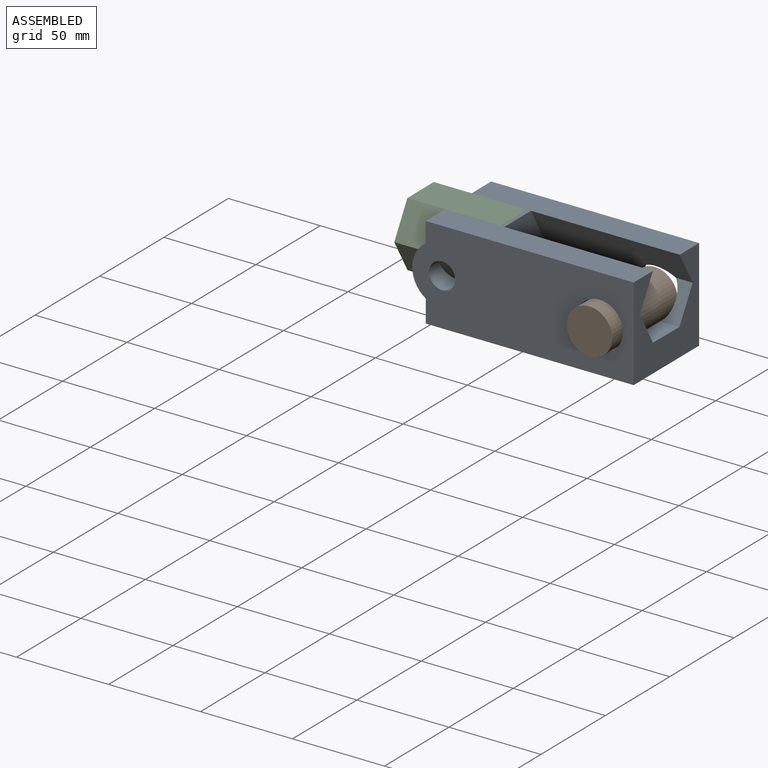
[diagram: assembled view]
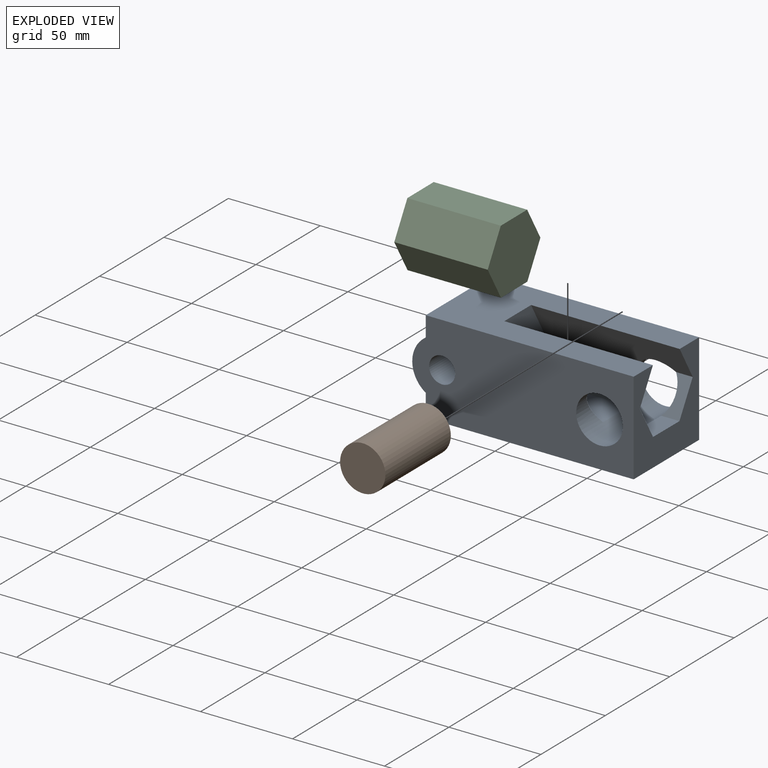
[diagram: exploded view]
GUIDED TOUR — MATED ASSEMBLY (Onshape document 167a81f168140e0e0e0a7507, AutoMate assembly 167a81f168140e0e0e0a7507_53d5cce58619a4c7962829b4_d030ca5ffd30fc23855b2f6c_default)

This assembly has 3 components, labeled P0..P2 below (a component is one placed occurrence of a part; the same part can appear more than once), held together by 2 mates. A mate is a constraint between two components; its type names the relative motion it leaves free:
  SLIDER — leaves translation along the listed axis free.
Axis/direction vectors are unit vectors and 'through' points are millimeter coordinates, both in the assembly's world frame.

MATES
  1. SLIDER "Slider 1": P1 <-> P0, axis (0.000, 1.000, 0.000) through (51.93, 49.98, 87.12) mm
  2. SLIDER "Slider 2": P2 <-> P0, axis (-1.000, 0.000, 0.000) through (-63.05, 32.32, 95.50) mm

ASSEMBLY ORDER
  1. P2 — the base component [order verified]
  2. P0 [order verified]
  3. P1 [order verified]
Order-tag legend:
  [order verified] — this step's position reverses a verified removal order: the component was checked to insert without passing through the ones already placed.

Of the 3 components, 1 carries the full construction recipe — the FeatureScript program that regenerates the part's solid from scratch; the rest are supplied as boundary geometry only.
Each toured component is shown spotlighted twice — in the assembled view, then in the exploded view, where a leader line traces a displaced component back to its assembled socket (saturated green if recipe-attached, orange if geometry-only; every other component desaturated gray) — followed by its recipe or geometry summary and the mates that hold it.
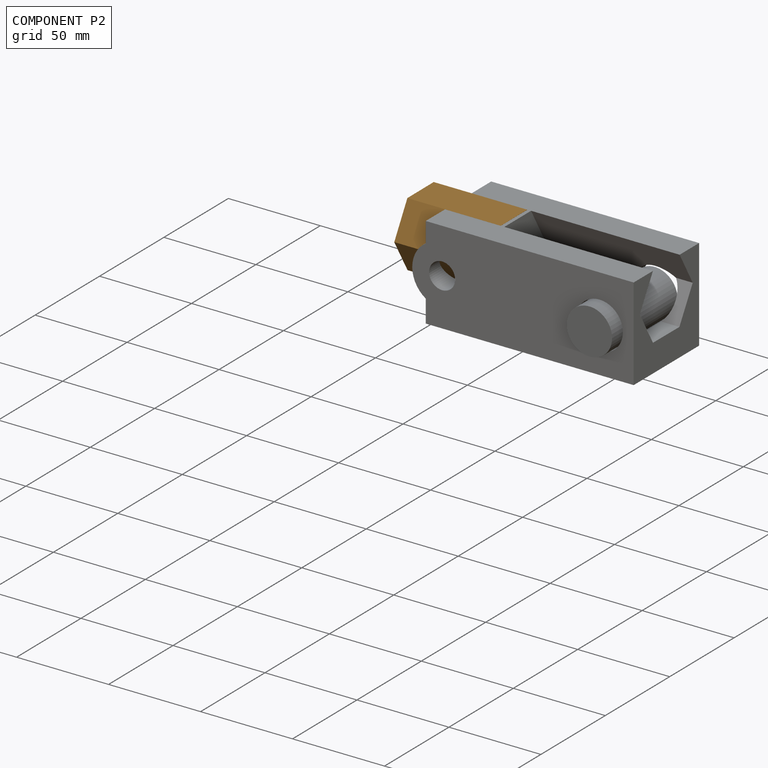
[diagram: component P2 — assembled]
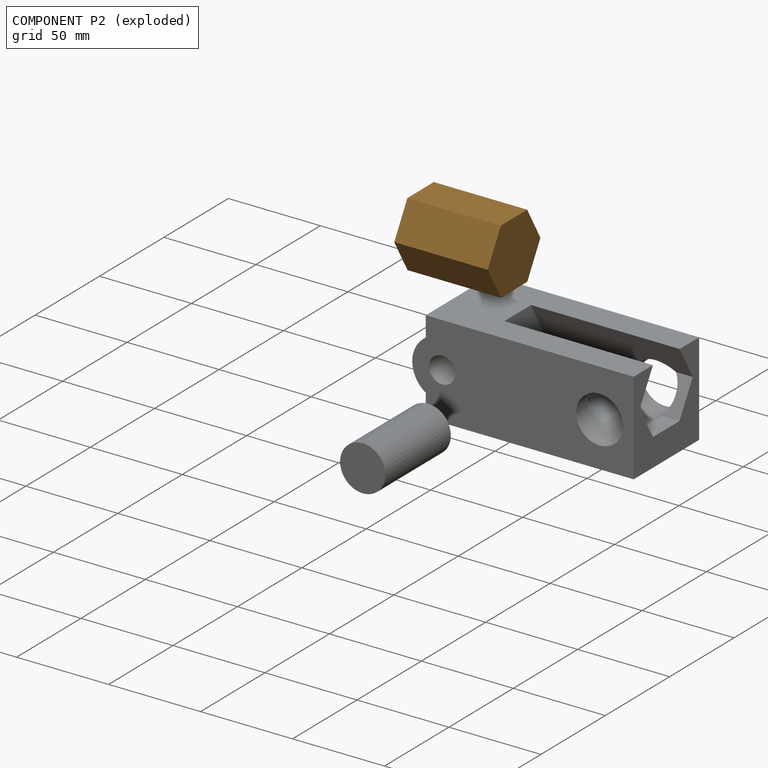
[diagram: component P2 — exploded]
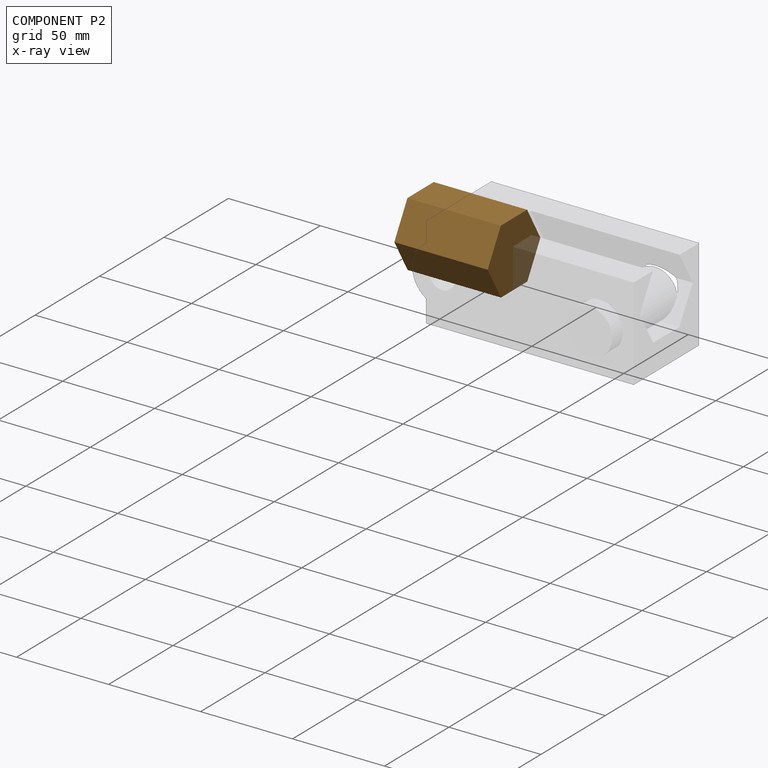
[diagram: component P2 — x-ray view]
COMPONENT P2 — geometry summary (no construction recipe available for this part):
  bounding box: 50.8 x 40.9 x 35.5 mm
  B-rep topology: 1 solid, 8 faces, 36 edges
  volume: 55234 mm^3 (75% of its bounding box)
  symmetry: 2-fold rotationally symmetric about the x axis; 2-fold rotationally symmetric about the y axis; 6-fold rotationally symmetric about the z axis; mirror-symmetric across its x mid-plane, y mid-plane, z mid-plane
Held by: SLIDER mate "Slider 2" to P0.
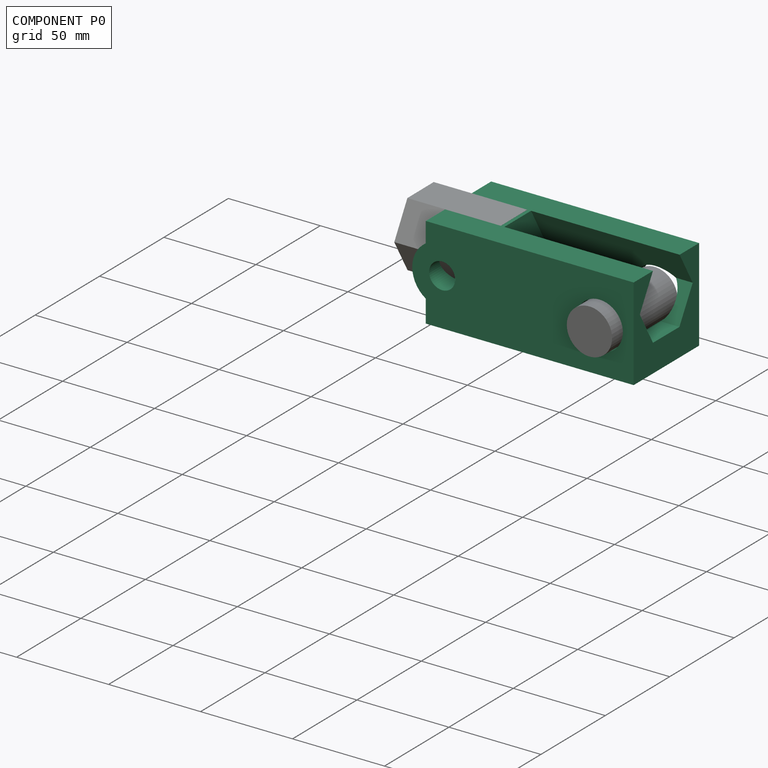
[diagram: component P0 — assembled]
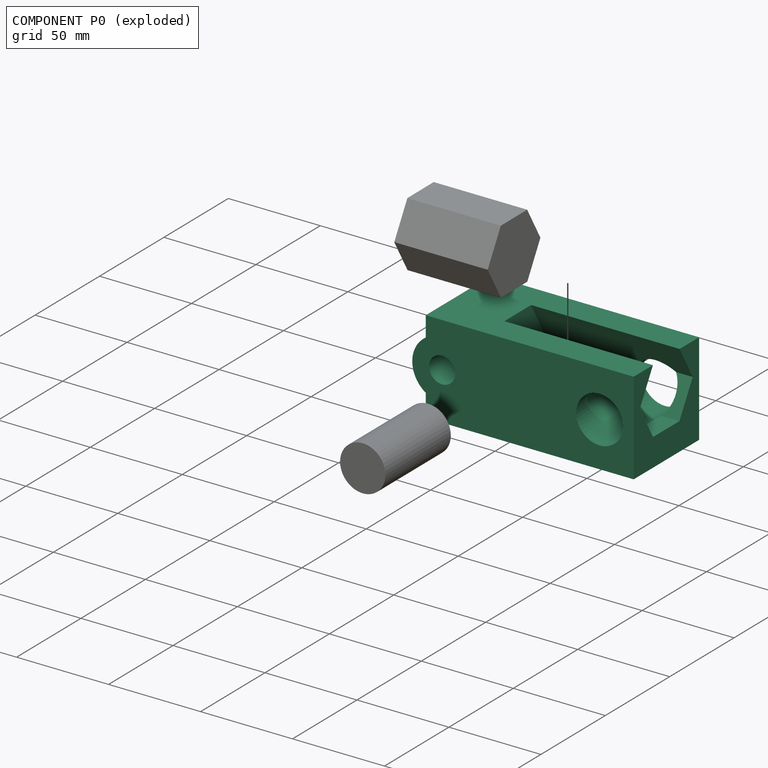
[diagram: component P0 — exploded]
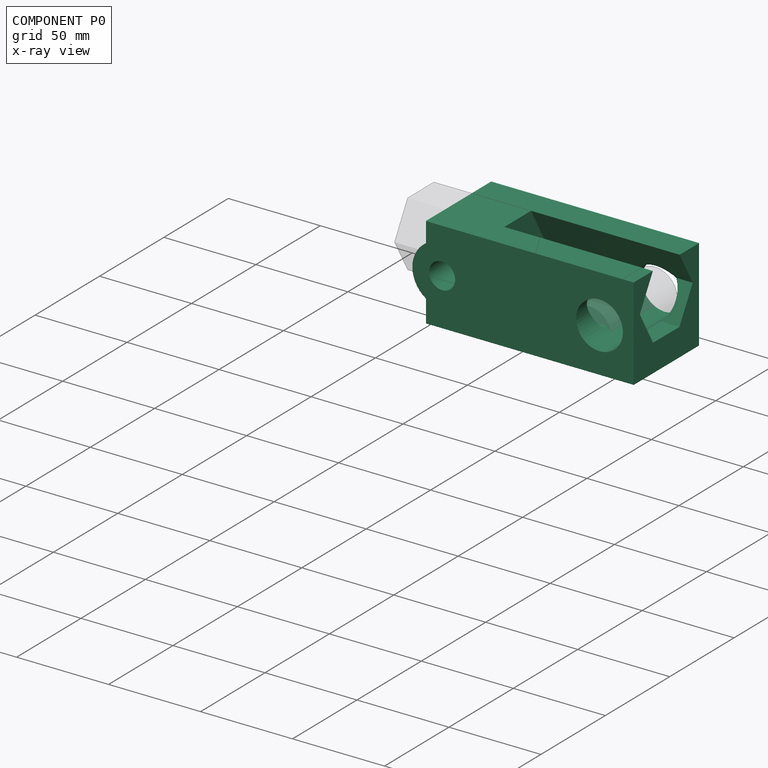
[diagram: component P0 — x-ray view]
COMPONENT P0 — recipe-attached (CADFS 00809749, mesh-verified: the recipe's output STEP matches this component's geometry to below the mesh-comparison resolution (tessellation chordal tolerance ~0.21 mm)).
Held by: SLIDER mate "Slider 1" to P1; SLIDER mate "Slider 2" to P2.
Construction recipe (FeatureScript — the CAD program that rebuilds this solid; sketch coordinates are in the units given by the * unit suffixes, e.g. mm):

FeatureScript 1511;
import(path : "onshape/std/geometry.fs", version : "1511.0");
import(path : "onshape/std/common.fs", version : "1511.0");
const mm = millimeter;
const VERTEX = EntityType.VERTEX;
const EDGE = EntityType.EDGE;
const FACE = EntityType.FACE;
const BODY = EntityType.BODY;
function v(x, y){return vector(x, y);}
function OD(order){return orderDisambiguation(order);}
function OSD(set){return originalSetDisambiguation(set);}
function TD(topology){return topologyDisambiguation(topology);}
function TDD(query){return trueDependencyDisambiguation(query);}
function sQuery(a, b, c) {return sketchEntityQuery(a, b, c);}

annotation { "Feature Type Name" : "Feature", "Feature Type Description" : "" }
export const myFeature = defineFeature(function(context is Context, id is Id, definition is map)
    precondition{}
    {
        {
            var Q0;
            Q0=qCreatedBy(makeId("Front.planeOp"),FACE);
            var sketch = newSketch(context, id + "F0", { "sketchPlane" : qUnion([Q0])});
            skLineSegment(sketch, "E0.bottom", {"start": v(-54.33, 24.57) * mm, "end": v(58.7, 24.57) * mm});
            skLineSegment(sketch, "E0.top", {"start": v(-54.33, -25.84) * mm, "end": v(58.7, -25.84) * mm});
            skLineSegment(sketch, "E0.left", {"start": v(-54.33, 24.57) * mm, "end": v(-54.33, -25.84) * mm});
            skLineSegment(sketch, "E0.right", {"start": v(58.7, 24.57) * mm, "end": v(58.7, -25.84) * mm});
            skArc(sketch, "E1", {"start": v(-54.33, 13.59) * mm, "mid": v(-61.68, 0) * mm, "end": v(-54.33, -13.59) * mm});
            skCircle(sketch, "E2", {"center": v(40.13, -1.46) * mm, "radius": 12.7 * mm});
            skCircle(sketch, "E3", {"center": v(-45.44, 0) * mm, "radius": 7.07 * mm});
            skSolve(sketch);
        }
        {
            var Q0;
            Q0 = qSketchRegion(id + "F0", true);
            extrude(context, id + "F1", {"entities" : qUnion([Q0]), "depth" : 50.8 * mm, "offsetDistance" : 25.4 * mm});
        }
        {
            var Q0;
            Q0=makeQuery(id+"F1.opExtrude","SWEPT_FACE",FACE,{"disambiguationData":[OSD([sQuery(id+"F0.wireOp",EDGE,"E0.right")])]});
            var sketch = newSketch(context, id + "F2", { "sketchPlane" : qUnion([Q0])});
            skCircle(sketch, "E4.cCircle", {"center": v(-25.5, 7) * mm, "radius": 17.78 * mm, "construction": true});
            skLineSegment(sketch, "E4.0", {"start": v(-35.8, -10.77) * mm, "end": v(-46.03, 7.03) * mm});
            skLineSegment(sketch, "E4.1", {"start": v(-46.03, 7.03) * mm, "end": v(-35.74, 24.8) * mm});
            skLineSegment(sketch, "E4.2", {"start": v(-35.74, 24.8) * mm, "end": v(-15.2, 24.76) * mm});
            skLineSegment(sketch, "E4.3", {"start": v(-15.2, 24.76) * mm, "end": v(-4.97, 6.96) * mm});
            skLineSegment(sketch, "E4.4", {"start": v(-4.97, 6.96) * mm, "end": v(-15.27, -10.8) * mm});
            skLineSegment(sketch, "E4.5", {"start": v(-15.27, -10.8) * mm, "end": v(-35.8, -10.77) * mm});
            skPoint(sketch, "E4.0.midPoint", {"position": v(-40.91, -1.87) * mm});
            skSolve(sketch);
        }
        {
            var Q0;
            Q0=makeQuery(id+"F2.imprint","IMPRINT",FACE,{"disambiguationData":[TD([[makeQuery(id+"F2.imprint","IMPRINT",EDGE,{"derivedFrom":sQuery(id+"F2.wireOp",EDGE,"E4.0")}),-1.0]])]});
            extrude(context, id + "F3", {"entities" : qUnion([Q0]), "operationType" : NewBodyOperationType.REMOVE, "oppositeDirection" : true, "depth" : 80.77 * mm, "offsetDistance" : 25.4 * mm});
        }
    });
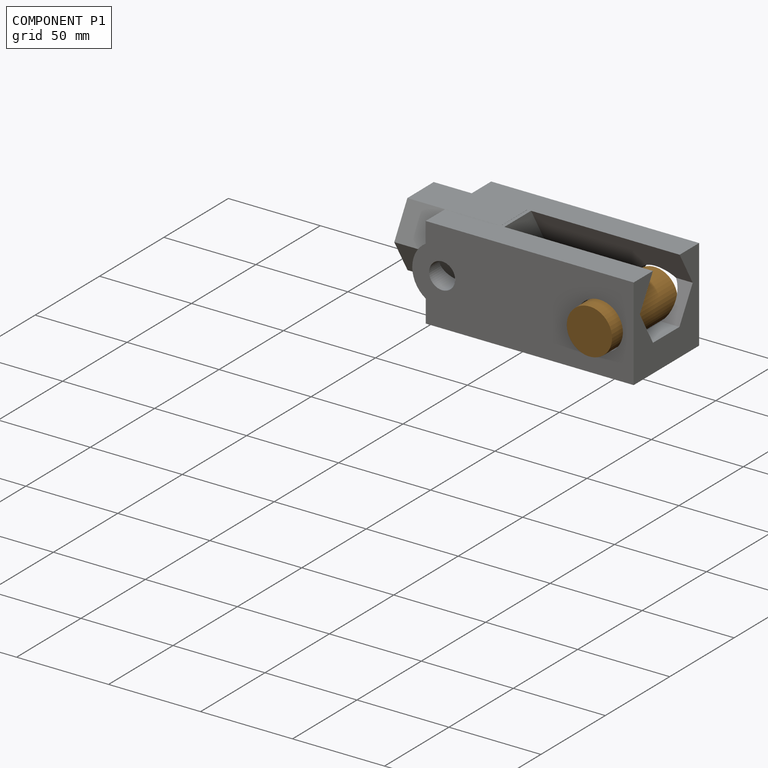
[diagram: component P1 — assembled]
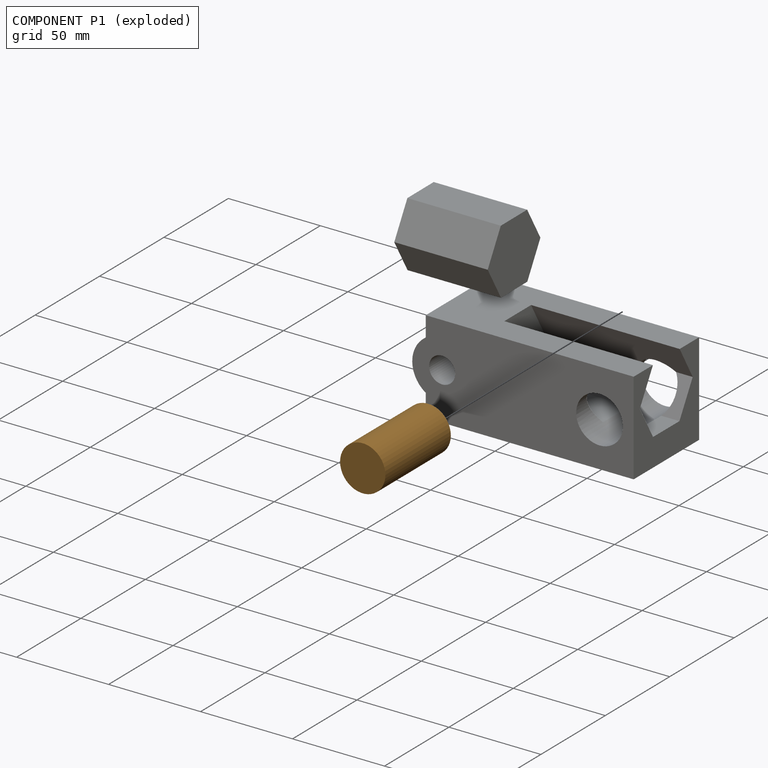
[diagram: component P1 — exploded]
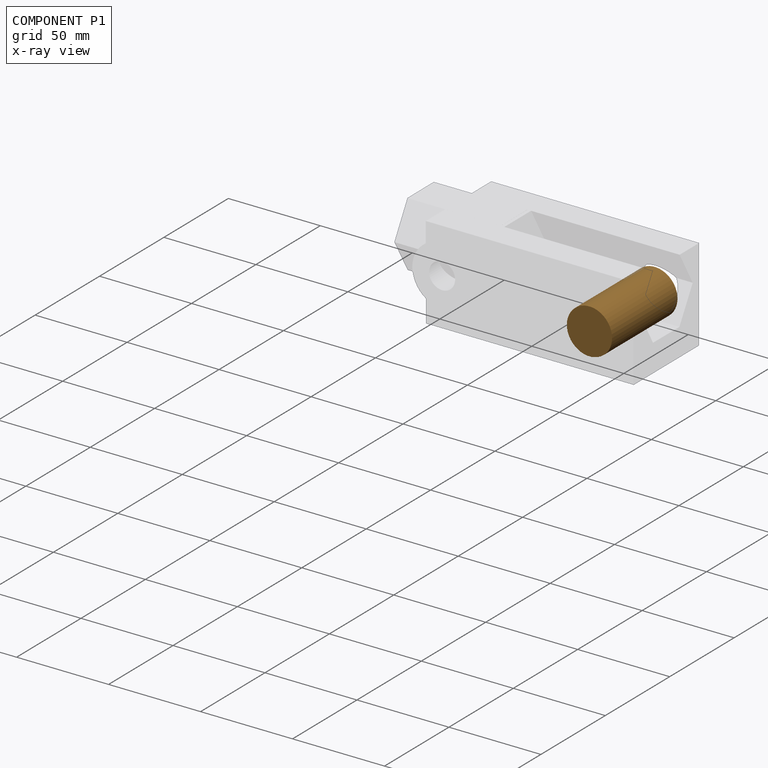
[diagram: component P1 — x-ray view]
COMPONENT P1 — geometry summary (no construction recipe available for this part):
  bounding box: 50.8 x 24.6 x 24.6 mm
  B-rep topology: 1 solid, 3 faces, 6 edges
  volume: 24219 mm^3 (79% of its bounding box)
  symmetry: 2-fold rotationally symmetric about the x axis; 2-fold rotationally symmetric about the y axis; revolution-symmetric about the z axis through its bounding-box center; mirror-symmetric across its x mid-plane, y mid-plane, z mid-plane
Held by: SLIDER mate "Slider 1" to P0.
PROVENANCE & LICENSES
Assembly (occurrences, transforms, mates, per-part STEP geometry): AutoMate dataset, Zenodo record 7776208, CC0.
Construction recipes: CADFS (HuggingFace VladPyatov/CADFS, CC-BY-4.0, layered over the ABC dataset), FeatureScript reconstruction programs keyed by ABC model id.
Join: ABC meta listings map ABC model id -> Onshape documentId; within a shared document, parts are matched by geometric signature (bounding-box dims + volume at 0.1% relative tolerance, exact B-rep face/solid counts).
Verification: 1 of this assembly's 3 components carries a recipe attachment, and every attachment is mesh-verified: the CADFS STEP and the AutoMate member STEP were compared as meshes in their shared local frame (symmetric sampled-point-to-mesh distance); worst across the 1 attachment: below the mesh-comparison resolution (tessellation chordal tolerance ~0.21 mm) on a 140 mm part.
Renders: orthographic iso camera (az 35 / el 25); the floor grid conveys scale (grid pitch printed in each image; no ruler). In the exploded view each component is displaced by its stored offset vector: the offsets alone carry the explosion direction (mate normal/axis signs are not orientation cues and do not encode it), and separation distances are assigned per mate-chain, not proportionally to assembly-order depth.
